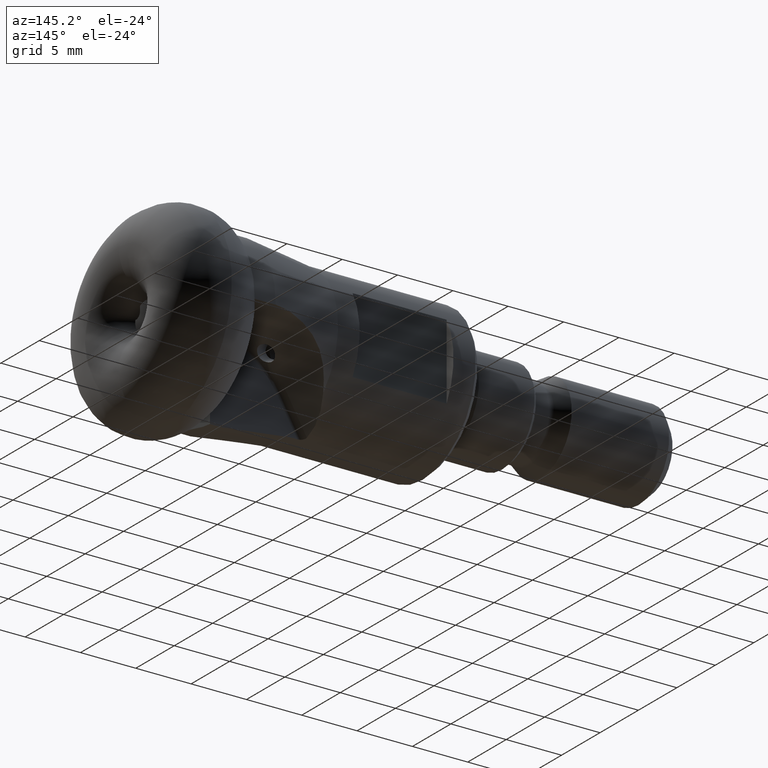
[diagram: clean part render]
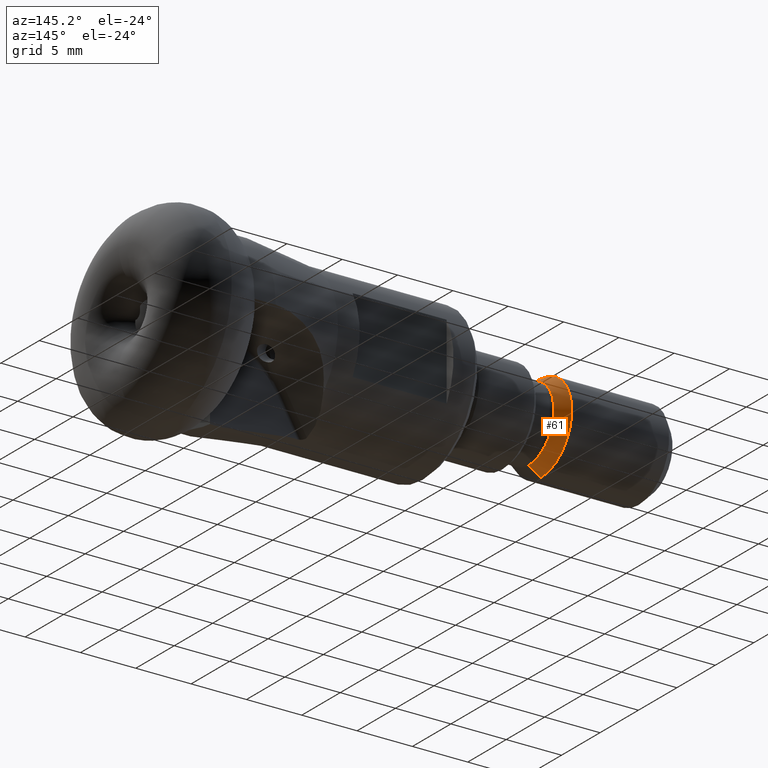
[diagram: same view with one face highlighted and labeled with its STEP entity id]
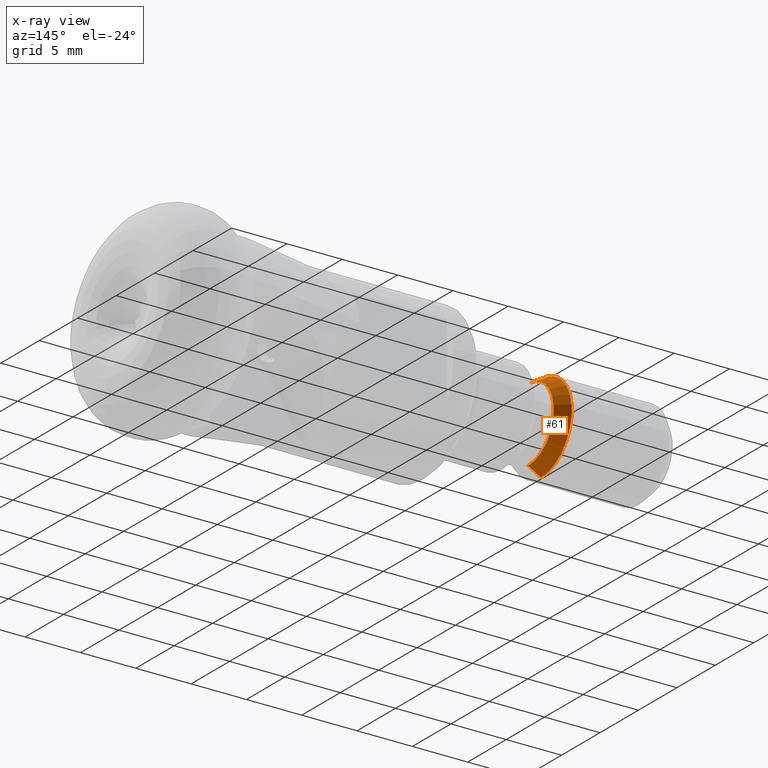
[diagram: x-ray of the same camera — body ghosted, the highlighted face saturated]
A machine part, auxiliary view. The second image highlights one B-rep face of the part: STEP entity #61.
The next image is the same camera in x-ray: the body ghosted, the highlighted face saturated — about 0% of this face is hidden behind the body in this view.
In plain terms, the highlighted conical surface has half-angle 30 deg.
Its self-contained STEP definition (entity closure, byte-faithful):
#61 = ADVANCED_FACE ( 'NONE', ( #258 ), #186, .T. ) ;
#186 = CONICAL_SURFACE ( 'NONE', #2052, 3.330384757729331300, 0.5235987755983000400 ) ;
#232 = CARTESIAN_POINT ( 'NONE',  ( -36.14019237886466800, 0.0000000000000000000, 0.0000000000000000000 ) ) ;
#245 = VERTEX_POINT ( 'NONE', #580 ) ;
#258 = FACE_OUTER_BOUND ( 'NONE', #2082, .T. ) ;
#266 = CARTESIAN_POINT ( 'NONE',  ( -36.14019237886466800, 0.0000000000000000000, -3.330384757729331700 ) ) ;
#489 = VERTEX_POINT ( 'NONE', #523 ) ;
#523 = CARTESIAN_POINT ( 'NONE',  ( -37.29999999999999700, 4.898587196589406900E-016, -3.999999999999994700 ) ) ;
#580 = CARTESIAN_POINT ( 'NONE',  ( -37.29999999999999700, 0.0000000000000000000, 3.999999999999994700 ) ) ;
#628 = CIRCLE ( 'NONE', #1386, 3.999999999999994700 ) ;
#758 = CARTESIAN_POINT ( 'NONE',  ( -37.29999999999999700, 0.0000000000000000000, 0.0000000000000000000 ) ) ;
#776 = CIRCLE ( 'NONE', #2311, 3.330384757729331300 ) ;
#999 = DIRECTION ( 'NONE',  ( 1.000000000000000000, -0.0000000000000000000, -0.0000000000000000000 ) ) ;
#1007 = VERTEX_POINT ( 'NONE', #2842 ) ;
#1160 = DIRECTION ( 'NONE',  ( -0.8660254037844380400, 6.123233995736778400E-017, -0.5000000000000010000 ) ) ;
#1260 = EDGE_CURVE ( 'NONE', #3220, #1007, #776, .T. ) ;
#1265 = DIRECTION ( 'NONE',  ( -0.8660254037844380400, 0.0000000000000000000, 0.5000000000000010000 ) ) ;
#1382 = LINE ( 'NONE', #2683, #1781 ) ;
#1386 = AXIS2_PLACEMENT_3D ( 'NONE', #758, #999, #2786 ) ;
#1450 = DIRECTION ( 'NONE',  ( -1.000000000000000000, 0.0000000000000000000, 0.0000000000000000000 ) ) ;
#1459 = VECTOR ( 'NONE', #1265, 1000.000000000000000 ) ;
#1527 = CARTESIAN_POINT ( 'NONE',  ( -36.14019237886466800, 0.0000000000000000000, 3.330384757729331300 ) ) ;
#1556 = ORIENTED_EDGE ( 'NONE', *, *, #1885, .T. ) ;
#1754 = ORIENTED_EDGE ( 'NONE', *, *, #3196, .F. ) ;
#1781 = VECTOR ( 'NONE', #1160, 1000.000000000000000 ) ;
#1815 = ORIENTED_EDGE ( 'NONE', *, *, #1260, .F. ) ;
#1885 = EDGE_CURVE ( 'NONE', #489, #245, #628, .T. ) ;
#2013 = DIRECTION ( 'NONE',  ( 0.0000000000000000000, 0.0000000000000000000, -1.000000000000000000 ) ) ;
#2052 = AXIS2_PLACEMENT_3D ( 'NONE', #2982, #1450, #3234 ) ;
#2082 = EDGE_LOOP ( 'NONE', ( #1815, #2173, #1556, #1754 ) ) ;
#2173 = ORIENTED_EDGE ( 'NONE', *, *, #2357, .T. ) ;
#2311 = AXIS2_PLACEMENT_3D ( 'NONE', #232, #2545, #2013 ) ;
#2357 = EDGE_CURVE ( 'NONE', #3220, #489, #1382, .T. ) ;
#2545 = DIRECTION ( 'NONE',  ( 1.000000000000000000, -0.0000000000000000000, -0.0000000000000000000 ) ) ;
#2683 = CARTESIAN_POINT ( 'NONE',  ( -36.14019237886466800, 4.078545033482358900E-016, -3.330384757729331300 ) ) ;
#2692 = LINE ( 'NONE', #1527, #1459 ) ;
#2786 = DIRECTION ( 'NONE',  ( 0.0000000000000000000, 0.0000000000000000000, -1.000000000000000000 ) ) ;
#2842 = CARTESIAN_POINT ( 'NONE',  ( -36.14019237886466800, 4.078545033482359900E-016, 3.330384757729331700 ) ) ;
#2982 = CARTESIAN_POINT ( 'NONE',  ( -36.14019237886466800, 0.0000000000000000000, 0.0000000000000000000 ) ) ;
#3196 = EDGE_CURVE ( 'NONE', #1007, #245, #2692, .T. ) ;
#3220 = VERTEX_POINT ( 'NONE', #266 ) ;
#3234 = DIRECTION ( 'NONE',  ( 0.0000000000000000000, 0.0000000000000000000, 1.000000000000000000 ) ) ;